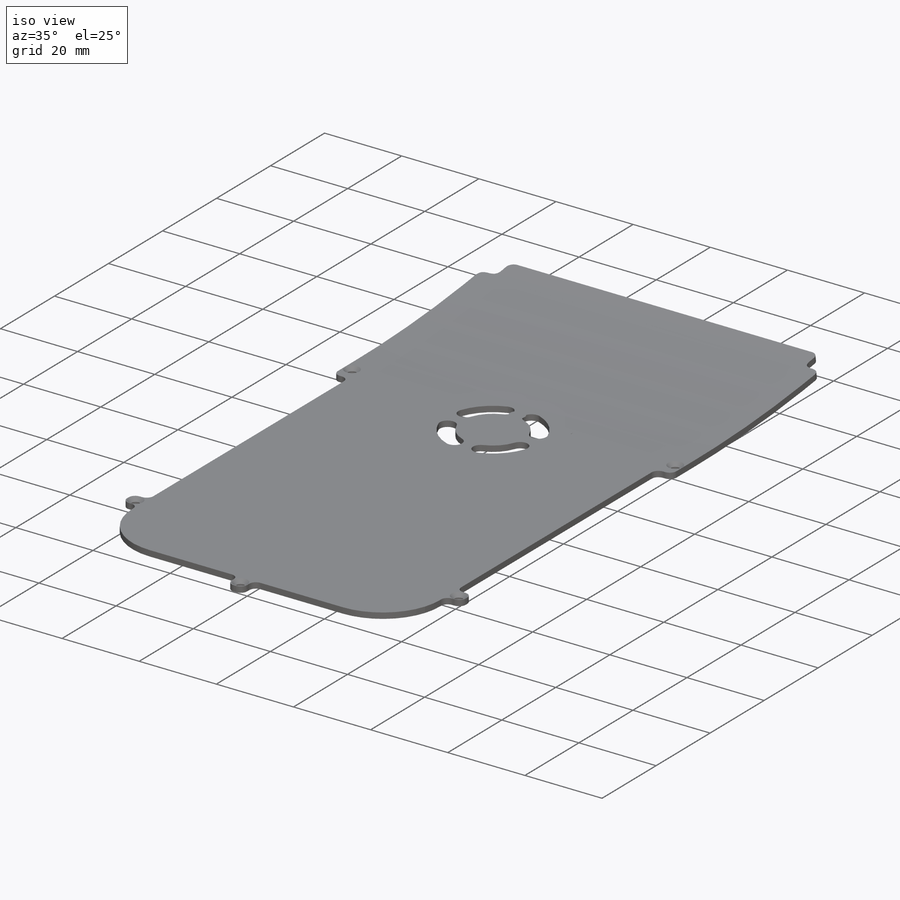
[diagram: iso view]
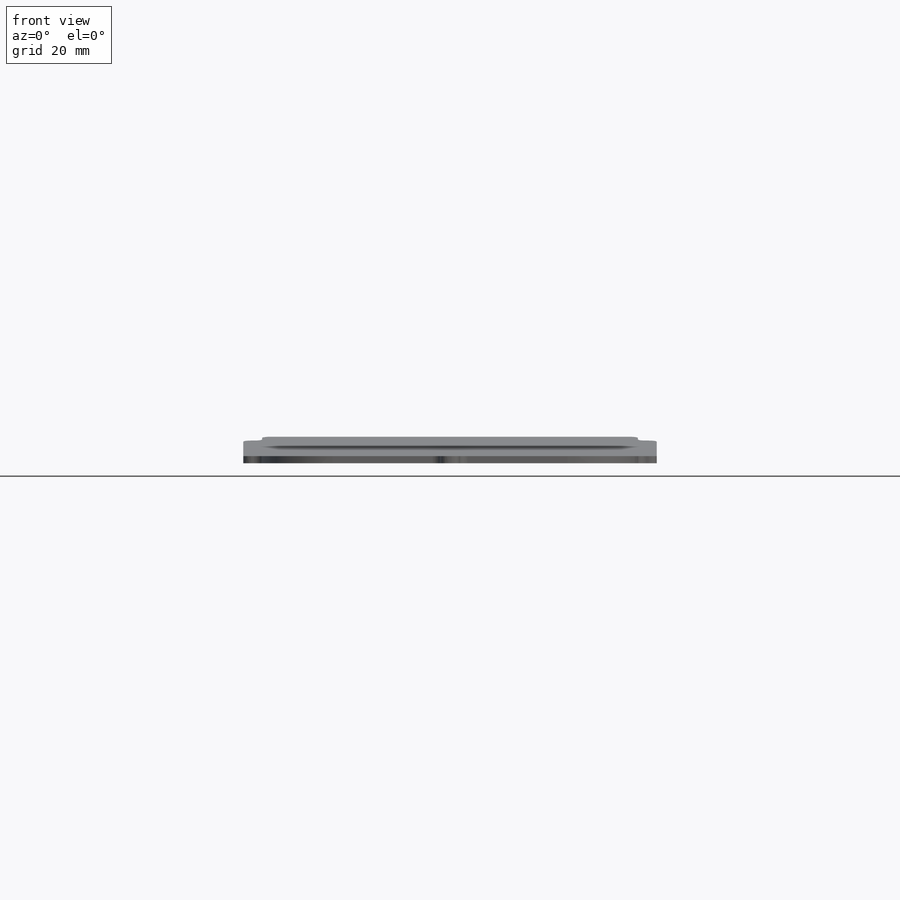
[diagram: front view]
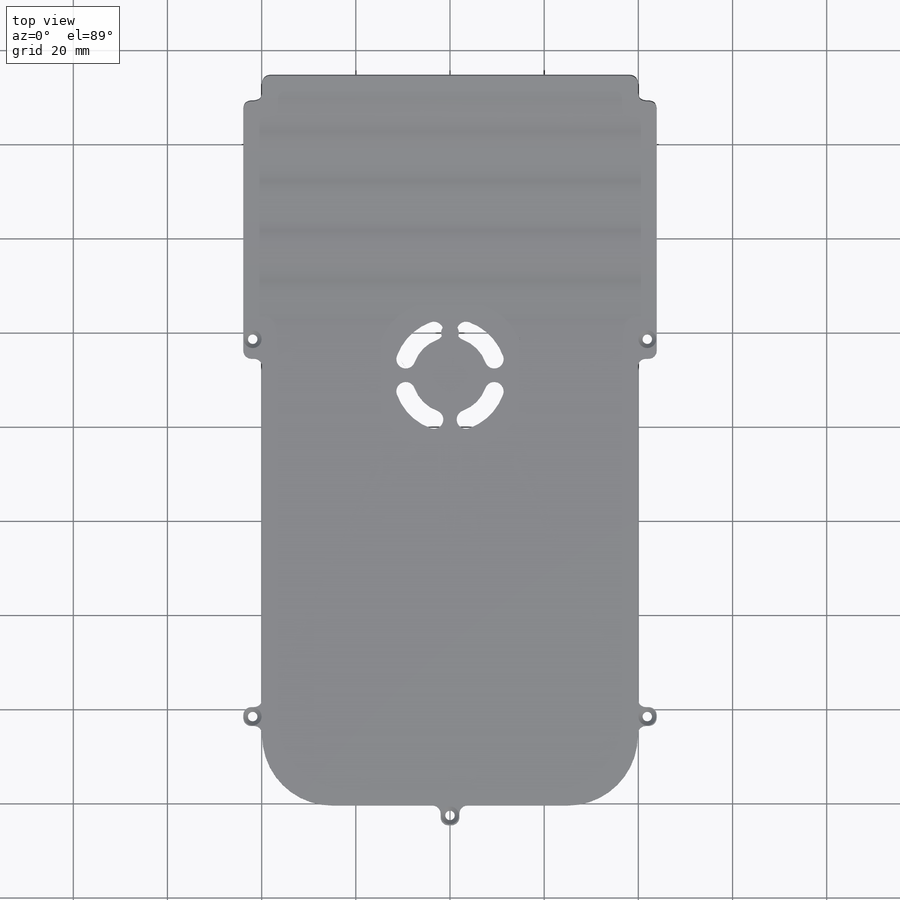
[diagram: top view]
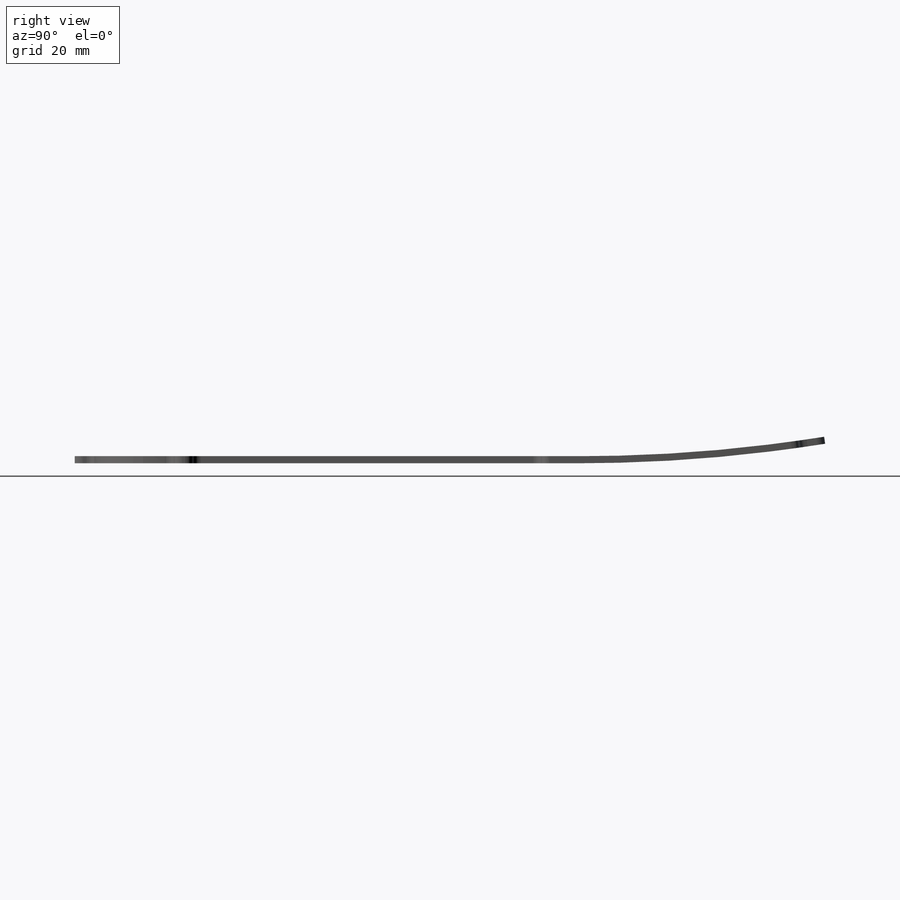
[diagram: right view]
SOLIDWORKS PART (.sldprt)
format: sldprt  version: not decoded by parser v0  size: 1,313,792 bytes
history: native  units: mm
features: sketch x21, sheet_metal_op x12, hole x8, plane x3, cut_extrude x3, material x1, fillet x1 + 5 further entries (+9 scaffold rows collapsed; 1 parser-record rows omitted)
feature tree (64):
  scaffold x9  (default folders/planes/origin — collapsed)
  material  "2014 Legierung"
  plane  "Ebene vorne"
  plane  "Ebene oben"
  plane  "Ebene rechts"
  sketch  "Skizze1"  dims[c1.D1=0.05mm c1.D2=4.2mm c2.D1=0.1mm c2.D2=0.1mm c2.D3=0.1mm c3.D2=0.1mm c3.D1=2.5mm c4.D2=0.5 c4.D3=0.0mm c4.D6=500.0mm]
  sheet_metal_op  "Basis-Blech1"
  sketch  "Skizze12"  dims[c1.D1=325.0mm c1.D4=8.5deg c1.D5=1.0 c1.D8=0.5mm c1.D9=0.5mm c2.D1=325.0mm c2.D2=500.0mm c2.D3=0.0mm c2.D6=10.0mm c2.D7=28.0mm]
  sketch  "Skizze9"  dims[c1.D1=0.1mm c1.D2=1.2mm c1.D3=20.0mm c2.D1=0.1mm c2.D2=0.15mm]
  cut_extrude  "Schnitt-Linear austragen1"  [1 undecoded]
  fillet  "Verrundung1"  Radius=1.7mm
  hole  "Formsenkung für M3 Senkschraube mit Innensechskant1"  Diameter=1.6mm Depth=12mm
  sketch  "Skizze13"
  sketch  "Skizze14"  dims[Bohrerdurchmesser=1.6mm Bohrungstiefe=12.0mm Senkdurchmesser (Oben)=3.8mm]
  sketch  "Skizze16"  dims[D1=2.0mm]
  cut_extrude  "Schnitt-Linear austragen3"  [1 undecoded]
  parser-record x1  (decoder bookkeeping rows leaked as tree rows — omitted from the tree; the rows remain in map.json)
  sketch  "Skizze15"  dims[c1.D2=2.0mm c1.D3=12.0mm c1.D4=8.0mm c1.D1=9.0mm c2.D4=10.0mm c2.D5=9.4253mm]
  cut_extrude  "Schnitt-Linear austragen2"  [1 undecoded]
  hole  "Skizzen-Transformation3"  [1 undecoded]
  sketch  "Biegung-Linien1"
  sketch  "Rahmen1"
  sheet_metal_op  "Blech(2)"
  "Abwicklung(2)"
  sketch  "Biegung-Linien2"
  sketch  "Rahmen2"
  hole  "Skizzen-Transformation1"  [1 undecoded]
  sheet_metal_op  "Blech(4)"
  sheet_metal_op  "Abwicklung(2)"
  sketch  "Biegung-Linien2"
  sketch  "Rahmen2"
  hole  "Skizzen-Transformation1"  [1 undecoded]
  sheet_metal_op  "Blech(5)"
  sheet_metal_op  "Abwicklung(2)"
  sketch  "Biegung-Linien2"
  sketch  "Rahmen2"
  hole  "Skizzen-Transformation1"  [1 undecoded]
  "Abwickeln-<Kantenbiegung1>1"
  sheet_metal_op  "Blech(8)"
  sheet_metal_op  "Abwicklung(2)"
  sketch  "Biegung-Linien2"
  sketch  "Rahmen2"
  hole  "Skizzen-Transformation1"  [1 undecoded]
  "Abwickeln-<Kantenbiegung1>2"
  sheet_metal_op  "Blech(9)"
  sheet_metal_op  "Abwicklung(2)"
  sketch  "Biegung-Linien2"
  sketch  "Rahmen2"
  "Abwickeln-<Kantenbiegung1>2"
  hole  "Skizzen-Transformation1"  [1 undecoded]
  sheet_metal_op  "Blech(10)"
  sheet_metal_op  "Abwicklung(2)"
  sketch  "Biegung-Linien2"
  sketch  "Rahmen2"
  hole  "Skizzen-Transformation1"  [1 undecoded]
  "Abwickeln-<Kantenbiegung1>2"
decode coverage: 8 of 45 modeling features carry decoded parameters; 5 rows unclassified (native names shown)
note: 10 parameter values undecoded
summary: no parameter record found for 10 features
note: suppression state not decoded; provenance and decode notes live in map.json
